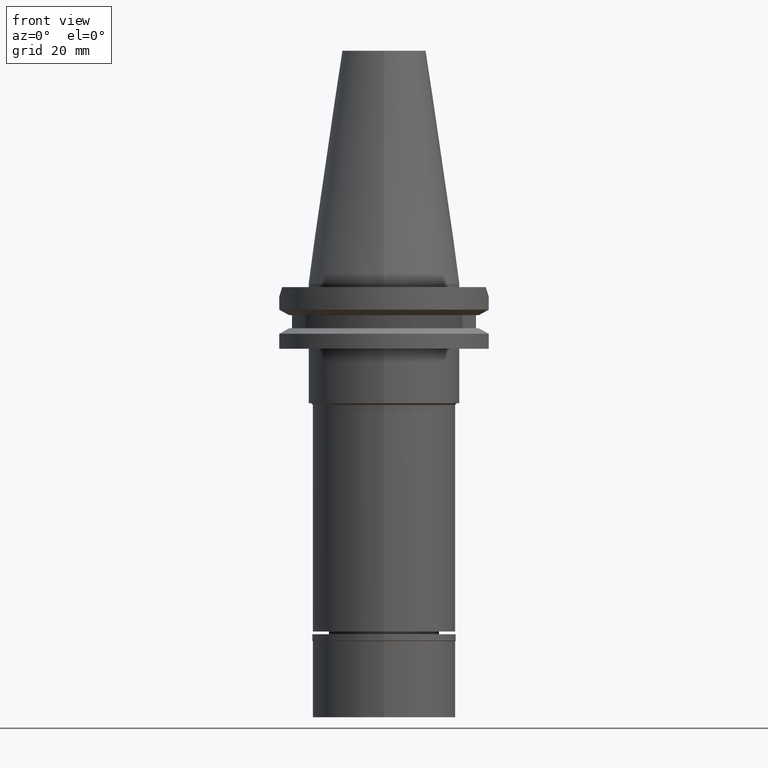
[diagram: clean part render]
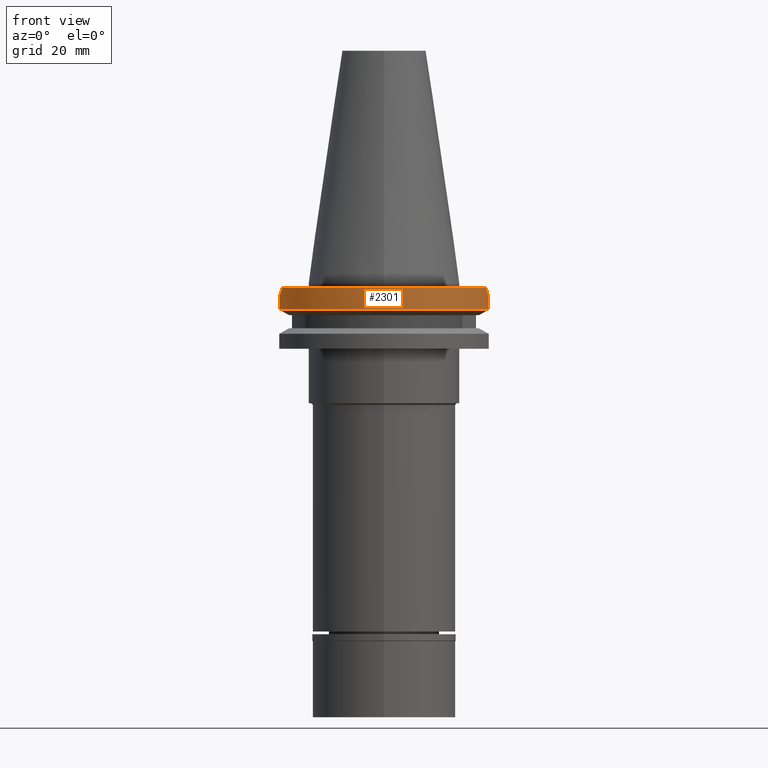
[diagram: same view with one face highlighted and labeled with its STEP entity id]
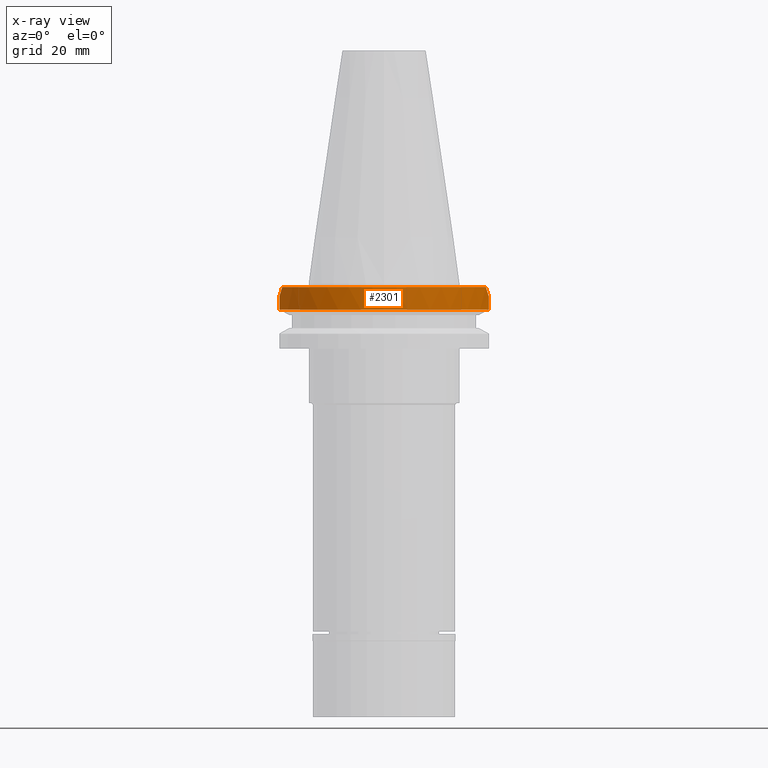
[diagram: x-ray of the same camera — body ghosted, the highlighted face saturated]
A machine part, front view. The second image highlights one B-rep face of the part: STEP entity #2301.
The next image is the same camera in x-ray: the body ghosted, the highlighted face saturated — about 0% of this face is hidden behind the body in this view.
In plain terms, the highlighted cylindrical surface (partial cylindrical patch) has radius 31.75 mm, axis along (0, 0, -1).
Its self-contained STEP definition (entity closure, byte-faithful):
#28 = CARTESIAN_POINT ( 'NONE',  ( -30.43183015827552040, -9.102667216255303728, -2.787332783744696840 ) ) ;
#96 = CIRCLE ( 'NONE', #536, 31.74999999999998579 ) ;
#184 = DIRECTION ( 'NONE',  ( -0.9661575315241073270, -0.2579527559055020958, 0.0000000000000000000 ) ) ;
#301 = VECTOR ( 'NONE', #1674, 1000.000000000000114 ) ;
#337 = AXIS2_PLACEMENT_3D ( 'NONE', #692, #2710, #2742 ) ;
#414 = CYLINDRICAL_SURFACE ( 'NONE', #337, 31.75000000000000000 ) ;
#462 = EDGE_LOOP ( 'NONE', ( #734, #2923, #2105, #1120, #489, #1520 ) ) ;
#466 = FACE_OUTER_BOUND ( 'NONE', #462, .T. ) ;
#489 = ORIENTED_EDGE ( 'NONE', *, *, #1029, .T. ) ;
#536 = AXIS2_PLACEMENT_3D ( 'NONE', #2961, #700, #184 ) ;
#692 = CARTESIAN_POINT ( 'NONE',  ( 0.0000000000000000000, 2.175431957834999696E-14, 77.63750000000000284 ) ) ;
#699 = CARTESIAN_POINT ( 'NONE',  ( 0.0000000000000000000, 2.175431957834999696E-14, -0.9999999999999000799 ) ) ;
#700 = DIRECTION ( 'NONE',  ( 0.0000000000000000000, 0.0000000000000000000, 1.000000000000000000 ) ) ;
#722 = AXIS2_PLACEMENT_3D ( 'NONE', #699, #1225, #1739 ) ;
#734 = ORIENTED_EDGE ( 'NONE', *, *, #2759, .F. ) ;
#741 = VERTEX_POINT ( 'NONE', #901 ) ;
#799 = CARTESIAN_POINT ( 'NONE',  ( -29.82399034335000110, -10.89000000000000057, -1.000000000001000089 ) ) ;
#808 = VERTEX_POINT ( 'NONE', #1434 ) ;
#901 = CARTESIAN_POINT ( 'NONE',  ( 30.67550146398999900, -8.190000606407000561, -7.601327811714999605 ) ) ;
#1025 = CARTESIAN_POINT ( 'NONE',  ( -30.14799306409551960, -10.00266721625513888, -1.887332783744861908 ) ) ;
#1029 = EDGE_CURVE ( 'NONE', #2665, #741, #96, .T. ) ;
#1088 = CARTESIAN_POINT ( 'NONE',  ( -30.67550165945999652, -8.189999874276001179, -7.601334354445000052 ) ) ;
#1108 = CARTESIAN_POINT ( 'NONE',  ( 29.82399034335000110, -10.89000000000000057, -1.000000000001000089 ) ) ;
#1119 = EDGE_CURVE ( 'NONE', #2690, #3074, #1464, .T. ) ;
#1120 = ORIENTED_EDGE ( 'NONE', *, *, #2820, .F. ) ;
#1160 = CARTESIAN_POINT ( 'NONE',  ( -30.67550165945999652, -8.189999874276001179, -7.601334354445000052 ) ) ;
#1225 = DIRECTION ( 'NONE',  ( 0.0000000000000000000, 0.0000000000000000000, -1.000000000000000000 ) ) ;
#1349 = EDGE_CURVE ( 'NONE', #808, #3074, #2985, .T. ) ;
#1434 = CARTESIAN_POINT ( 'NONE',  ( -30.67550162588999640, -8.189999999999999503, -3.700000000000000178 ) ) ;
#1464 = CIRCLE ( 'NONE', #722, 31.75000000000000000 ) ;
#1479 = CARTESIAN_POINT ( 'NONE',  ( 30.14799306409552671, -10.00266721625513888, -1.887332783744861908 ) ) ;
#1520 = ORIENTED_EDGE ( 'NONE', *, *, #2552, .F. ) ;
#1529 = DIRECTION ( 'NONE',  ( -4.149952334242944498E-08, -1.554361652635980091E-07, -0.9999999999999870104 ) ) ;
#1674 = DIRECTION ( 'NONE',  ( 8.604053470648995806E-09, -3.222588451521998241E-08, 0.9999999999999994449 ) ) ;
#1739 = DIRECTION ( 'NONE',  ( 0.0000000000000000000, -1.000000000000000000, 0.0000000000000000000 ) ) ;
#1745 = CARTESIAN_POINT ( 'NONE',  ( 29.82399034335000110, -10.89000000000000057, -1.000000000001000089 ) ) ;
#1793 = LINE ( 'NONE', #2783, #2748 ) ;
#1807 = B_SPLINE_CURVE_WITH_KNOTS ( 'NONE', 3,
 ( #1745, #1479, #2721, #1972 ),
 .UNSPECIFIED., .F., .F.,
 ( 4, 4 ),
 ( 0.0000000000000000000, 1.000000000000000000 ),
 .UNSPECIFIED. ) ;
#1972 = CARTESIAN_POINT ( 'NONE',  ( 30.67550162588999640, -8.189999999999999503, -3.700000000000000178 ) ) ;
#1989 = LINE ( 'NONE', #1160, #301 ) ;
#2091 = CARTESIAN_POINT ( 'NONE',  ( -29.82399034335000110, -10.89000000000000057, -1.000000000001000089 ) ) ;
#2105 = ORIENTED_EDGE ( 'NONE', *, *, #1349, .F. ) ;
#2215 = CARTESIAN_POINT ( 'NONE',  ( 30.67550162588999640, -8.189999999999999503, -3.700000000000000178 ) ) ;
#2296 = CARTESIAN_POINT ( 'NONE',  ( -30.67550162588999640, -8.189999999999999503, -3.700000000000000178 ) ) ;
#2301 = ADVANCED_FACE ( 'NONE', ( #466 ), #414, .T. ) ;
#2320 = VERTEX_POINT ( 'NONE', #2215 ) ;
#2552 = EDGE_CURVE ( 'NONE', #2320, #741, #1793, .T. ) ;
#2665 = VERTEX_POINT ( 'NONE', #1088 ) ;
#2690 = VERTEX_POINT ( 'NONE', #1108 ) ;
#2710 = DIRECTION ( 'NONE',  ( 0.0000000000000000000, 0.0000000000000000000, -1.000000000000000000 ) ) ;
#2721 = CARTESIAN_POINT ( 'NONE',  ( 30.43183015827552396, -9.102667216255303728, -2.787332783744696840 ) ) ;
#2742 = DIRECTION ( 'NONE',  ( 0.0000000000000000000, -1.000000000000000000, 0.0000000000000000000 ) ) ;
#2748 = VECTOR ( 'NONE', #1529, 1000.000000000000227 ) ;
#2759 = EDGE_CURVE ( 'NONE', #2690, #2320, #1807, .T. ) ;
#2783 = CARTESIAN_POINT ( 'NONE',  ( 30.67550162588999640, -8.189999999999999503, -3.700000000000000178 ) ) ;
#2820 = EDGE_CURVE ( 'NONE', #2665, #808, #1989, .T. ) ;
#2923 = ORIENTED_EDGE ( 'NONE', *, *, #1119, .T. ) ;
#2961 = CARTESIAN_POINT ( 'NONE',  ( 0.0000000000000000000, 1.121722380078999823E-14, -7.601333230925999551 ) ) ;
#2985 = B_SPLINE_CURVE_WITH_KNOTS ( 'NONE', 3,
 ( #2296, #28, #1025, #799 ),
 .UNSPECIFIED., .F., .F.,
 ( 4, 4 ),
 ( 0.0000000000000000000, 1.000000000000000000 ),
 .UNSPECIFIED. ) ;
#3074 = VERTEX_POINT ( 'NONE', #2091 ) ;